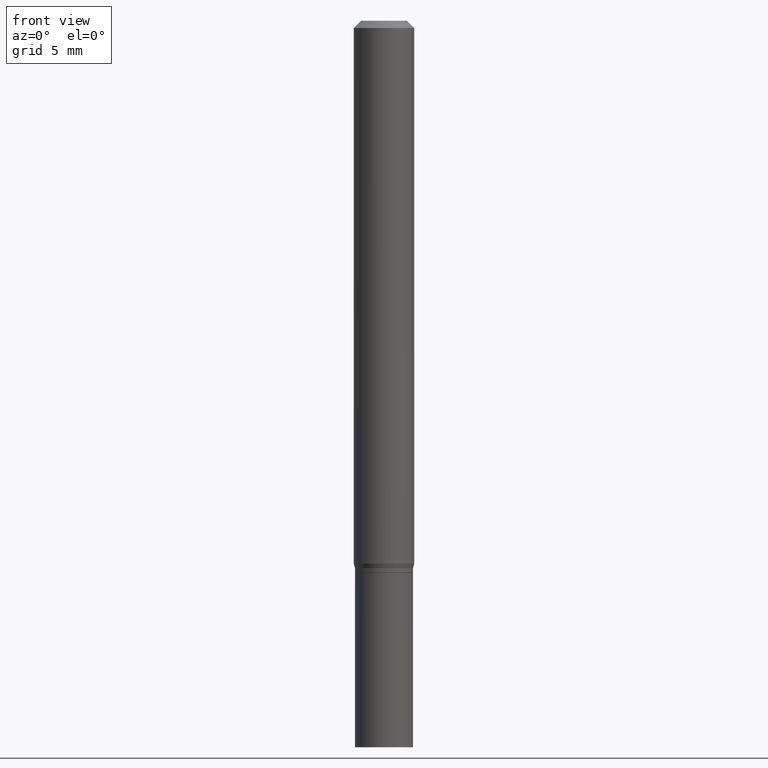
[diagram: clean part render]
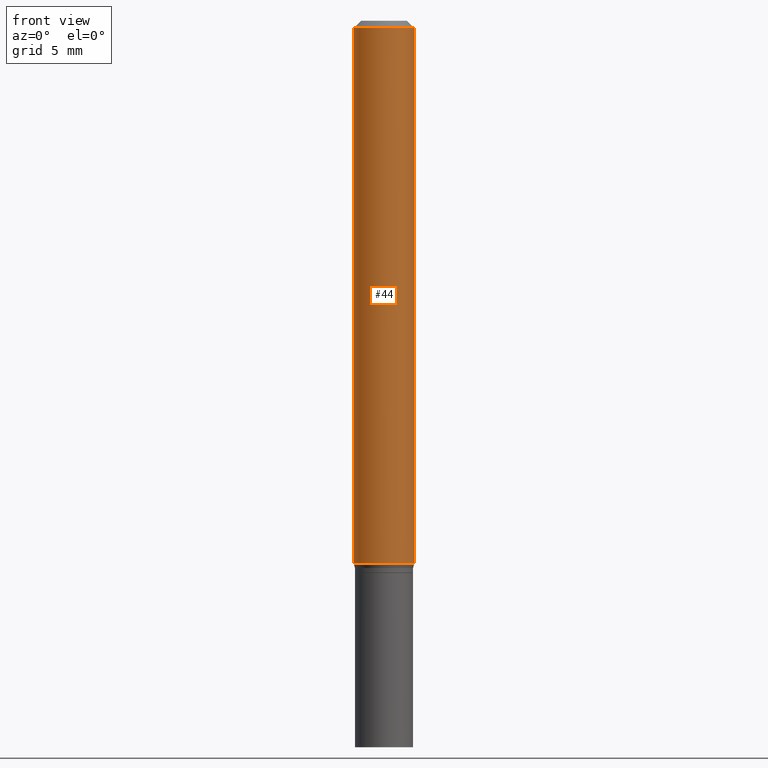
[diagram: same view with one face highlighted and labeled with its STEP entity id]
A machine part, front view. The second image highlights one B-rep face of the part: STEP entity #44.
In plain terms, the highlighted cylindrical surface (edge-blend (fillet) strip) has radius 1.5875 mm, axis along (-0, 0, 1).
Its self-contained STEP definition (entity closure, byte-faithful):
#15 = DIRECTION ( 'NONE',  ( -2.445468806185136597E-29, 3.491481338843145583E-15, 1.000000000000000000 ) ) ;
#21 = EDGE_CURVE ( 'NONE', #164, #240, #238, .T. ) ;
#24 = CIRCLE ( 'NONE', #76, 0.06250000000000000000 ) ;
#28 = LINE ( 'NONE', #319, #373 ) ;
#42 = CARTESIAN_POINT ( 'NONE',  ( -0.06250000000000000000, -3.468708738667092242E-15, -1.120669872981078674 ) ) ;
#43 = VECTOR ( 'NONE', #208, 39.37007874015748143 ) ;
#44 = ADVANCED_FACE ( 'NONE', ( #192 ), #428, .T. ) ;
#52 = ORIENTED_EDGE ( 'NONE', *, *, #160, .F. ) ;
#66 = CARTESIAN_POINT ( 'NONE',  ( 0.06250000000000000000, -4.364351673553916694E-16, 3.047610484872459871E-30 ) ) ;
#76 = AXIS2_PLACEMENT_3D ( 'NONE', #392, #323, #212 ) ;
#105 = ORIENTED_EDGE ( 'NONE', *, *, #21, .T. ) ;
#106 = EDGE_CURVE ( 'NONE', #346, #164, #297, .T. ) ;
#108 = ORIENTED_EDGE ( 'NONE', *, *, #106, .T. ) ;
#110 = CARTESIAN_POINT ( 'NONE',  ( 0.000000000000000000, 0.000000000000000000, 0.000000000000000000 ) ) ;
#115 = CARTESIAN_POINT ( 'NONE',  ( -0.06250000000000000000, -1.538495874449838155E-15, -0.01499999999999999944 ) ) ;
#116 = AXIS2_PLACEMENT_3D ( 'NONE', #262, #15, #404 ) ;
#131 = DIRECTION ( 'NONE',  ( -2.445468806185136877E-29, 3.491481338843145188E-15, 1.000000000000000000 ) ) ;
#160 = EDGE_CURVE ( 'NONE', #346, #335, #28, .T. ) ;
#164 = VERTEX_POINT ( 'NONE', #170 ) ;
#170 = CARTESIAN_POINT ( 'NONE',  ( 0.06250000000000000000, -4.349233115872546527E-15, -1.120669872981078674 ) ) ;
#192 = FACE_OUTER_BOUND ( 'NONE', #402, .T. ) ;
#208 = DIRECTION ( 'NONE',  ( -2.445468806185136877E-29, 3.491481338843145188E-15, 1.000000000000000000 ) ) ;
#212 = DIRECTION ( 'NONE',  ( 1.000000000000000000, -6.982962677686266711E-15, 0.000000000000000000 ) ) ;
#216 = DIRECTION ( 'NONE',  ( -2.445468806185136597E-29, 3.491481338843145583E-15, 1.000000000000000000 ) ) ;
#238 = LINE ( 'NONE', #66, #43 ) ;
#239 = ORIENTED_EDGE ( 'NONE', *, *, #419, .F. ) ;
#240 = VERTEX_POINT ( 'NONE', #276 ) ;
#255 = AXIS2_PLACEMENT_3D ( 'NONE', #110, #216, #355 ) ;
#262 = CARTESIAN_POINT ( 'NONE',  ( 2.740563216406686834E-29, -3.912797948517154069E-15, -1.120669872981078674 ) ) ;
#276 = CARTESIAN_POINT ( 'NONE',  ( 0.06250000000000000000, -4.888073874380388472E-16, -0.01499999999999999944 ) ) ;
#297 = CIRCLE ( 'NONE', #116, 0.06250000000000000000 ) ;
#319 = CARTESIAN_POINT ( 'NONE',  ( -0.06250000000000000000, 4.440892098500626162E-16, -3.074334431409316114E-30 ) ) ;
#323 = DIRECTION ( 'NONE',  ( -2.445468806185136597E-29, 3.491481338843145583E-15, 1.000000000000000000 ) ) ;
#335 = VERTEX_POINT ( 'NONE', #115 ) ;
#346 = VERTEX_POINT ( 'NONE', #42 ) ;
#355 = DIRECTION ( 'NONE',  ( 1.000000000000000000, -6.982962677686266711E-15, 4.876176775795935793E-29 ) ) ;
#373 = VECTOR ( 'NONE', #131, 39.37007874015748143 ) ;
#392 = CARTESIAN_POINT ( 'NONE',  ( 3.668203209277705088E-31, -5.237222008264718399E-17, -0.01499999999999999944 ) ) ;
#402 = EDGE_LOOP ( 'NONE', ( #52, #108, #105, #239 ) ) ;
#404 = DIRECTION ( 'NONE',  ( 1.000000000000000000, -6.982962677686270655E-15, 0.000000000000000000 ) ) ;
#419 = EDGE_CURVE ( 'NONE', #335, #240, #24, .T. ) ;
#428 = CYLINDRICAL_SURFACE ( 'NONE', #255, 0.06250000000000000000 ) ;